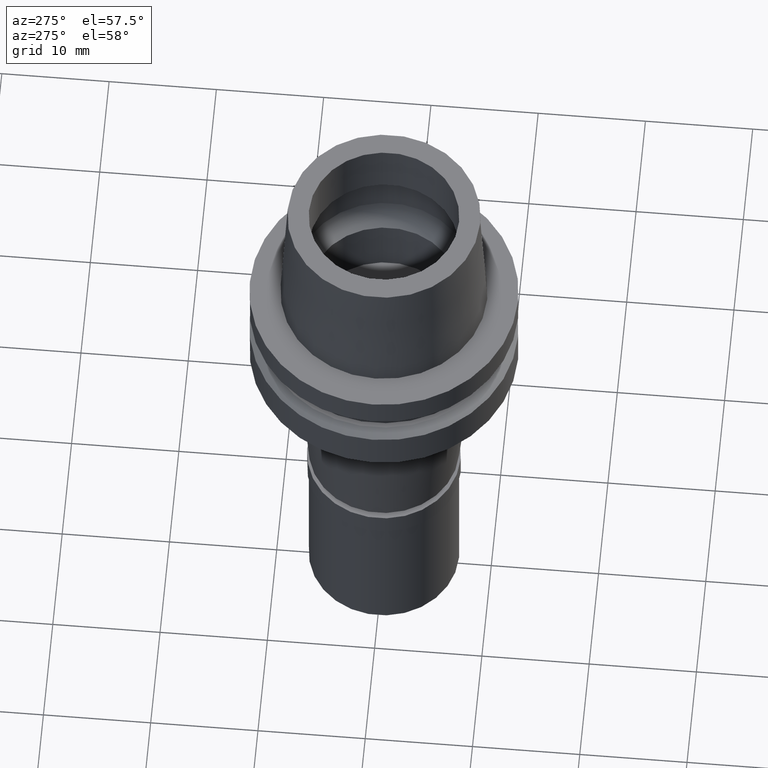
[diagram: clean part render]
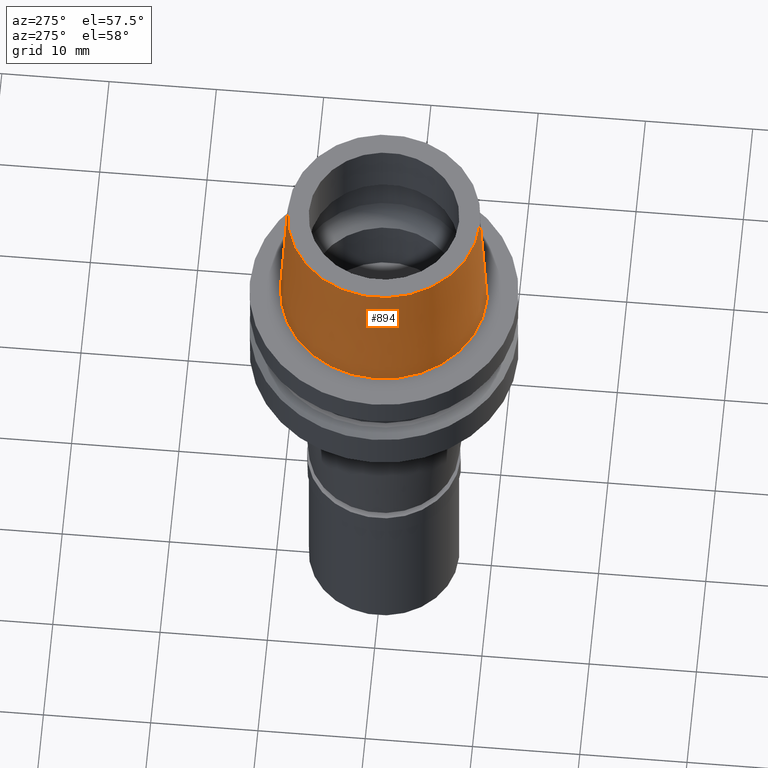
[diagram: same view with one face highlighted and labeled with its STEP entity id]
A machine part, auxiliary view. The second image highlights one B-rep face of the part: STEP entity #894.
In plain terms, the highlighted conical surface has half-angle 2.862 deg.
Its self-contained STEP definition (entity closure, byte-faithful):
#16 = VECTOR ( 'NONE', #2133, 999.9999999999998863 ) ;
#57 = LINE ( 'NONE', #250, #1464 ) ;
#89 = DIRECTION ( 'NONE',  ( 0.0000000000000000000, 0.0000000000000000000, -1.000000000000000000 ) ) ;
#93 = EDGE_CURVE ( 'NONE', #1637, #845, #1459, .T. ) ;
#145 = CIRCLE ( 'NONE', #2314, 9.624999771398000448 ) ;
#250 = CARTESIAN_POINT ( 'NONE',  ( 0.0000000000000000000, 8.975000960130000038, 13.00000000000000000 ) ) ;
#281 = ORIENTED_EDGE ( 'NONE', *, *, #1996, .T. ) ;
#442 = DIRECTION ( 'NONE',  ( 0.0000000000000000000, -1.000000000000000000, 0.0000000000000000000 ) ) ;
#457 = CARTESIAN_POINT ( 'NONE',  ( 0.0000000000000000000, -8.975000960130000038, 13.00000000000000000 ) ) ;
#670 = EDGE_LOOP ( 'NONE', ( #2555, #2196, #686, #281 ) ) ;
#675 = EDGE_CURVE ( 'NONE', #2270, #845, #145, .T. ) ;
#686 = ORIENTED_EDGE ( 'NONE', *, *, #2136, .T. ) ;
#845 = VERTEX_POINT ( 'NONE', #1571 ) ;
#894 = ADVANCED_FACE ( 'NONE', ( #2149 ), #1066, .T. ) ;
#1066 = CONICAL_SURFACE ( 'NONE', #1744, 9.300000365763999355, 0.04995830450907576964 ) ;
#1459 = LINE ( 'NONE', #457, #16 ) ;
#1460 = CARTESIAN_POINT ( 'NONE',  ( 0.0000000000000000000, 0.0000000000000000000, 13.00000000000000000 ) ) ;
#1464 = VECTOR ( 'NONE', #2115, 999.9999999999998863 ) ;
#1509 = CARTESIAN_POINT ( 'NONE',  ( 0.0000000000000000000, 0.0000000000000000000, 6.500000000000000000 ) ) ;
#1529 = CARTESIAN_POINT ( 'NONE',  ( 0.0000000000000000000, 0.0000000000000000000, 2.557953848736000191E-13 ) ) ;
#1571 = CARTESIAN_POINT ( 'NONE',  ( 0.0000000000000000000, -9.624999771398000448, 1.332267629550000037E-13 ) ) ;
#1637 = VERTEX_POINT ( 'NONE', #2470 ) ;
#1744 = AXIS2_PLACEMENT_3D ( 'NONE', #1509, #89, #1961 ) ;
#1777 = DIRECTION ( 'NONE',  ( 0.0000000000000000000, 0.0000000000000000000, 1.000000000000000000 ) ) ;
#1961 = DIRECTION ( 'NONE',  ( 0.0000000000000000000, -1.000000000000000000, 0.0000000000000000000 ) ) ;
#1979 = CARTESIAN_POINT ( 'NONE',  ( 0.0000000000000000000, 8.975000960130000038, 13.00000000000000000 ) ) ;
#1993 = DIRECTION ( 'NONE',  ( 0.0000000000000000000, 1.000000000000000000, 0.0000000000000000000 ) ) ;
#1996 = EDGE_CURVE ( 'NONE', #2227, #2270, #57, .T. ) ;
#2115 = DIRECTION ( 'NONE',  ( 0.0000000000000000000, 0.04993752584484958956, -0.9987523434327927330 ) ) ;
#2133 = DIRECTION ( 'NONE',  ( 0.0000000000000000000, -0.04993752584484958956, -0.9987523434327927330 ) ) ;
#2136 = EDGE_CURVE ( 'NONE', #1637, #2227, #2179, .T. ) ;
#2149 = FACE_OUTER_BOUND ( 'NONE', #670, .T. ) ;
#2179 = CIRCLE ( 'NONE', #2451, 8.975000960130000038 ) ;
#2196 = ORIENTED_EDGE ( 'NONE', *, *, #93, .F. ) ;
#2227 = VERTEX_POINT ( 'NONE', #1979 ) ;
#2270 = VERTEX_POINT ( 'NONE', #2586 ) ;
#2302 = DIRECTION ( 'NONE',  ( 0.0000000000000000000, 0.0000000000000000000, -1.000000000000000000 ) ) ;
#2314 = AXIS2_PLACEMENT_3D ( 'NONE', #1529, #1777, #1993 ) ;
#2451 = AXIS2_PLACEMENT_3D ( 'NONE', #1460, #2302, #442 ) ;
#2470 = CARTESIAN_POINT ( 'NONE',  ( 0.0000000000000000000, -8.975000960130000038, 13.00000000000000000 ) ) ;
#2555 = ORIENTED_EDGE ( 'NONE', *, *, #675, .T. ) ;
#2586 = CARTESIAN_POINT ( 'NONE',  ( 0.0000000000000000000, 9.624999771398000448, 1.332267629550000037E-13 ) ) ;